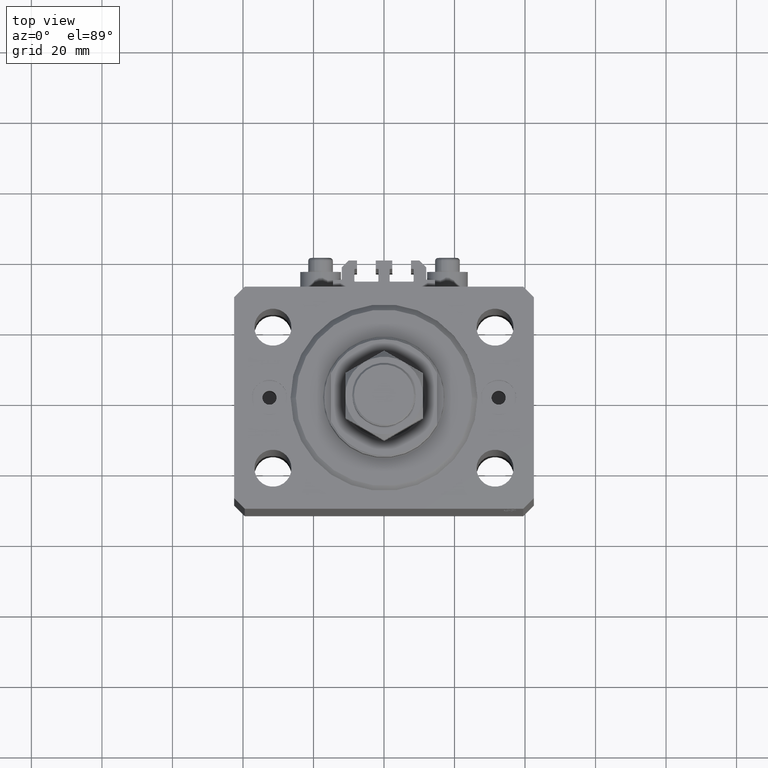
[diagram: clean part render]
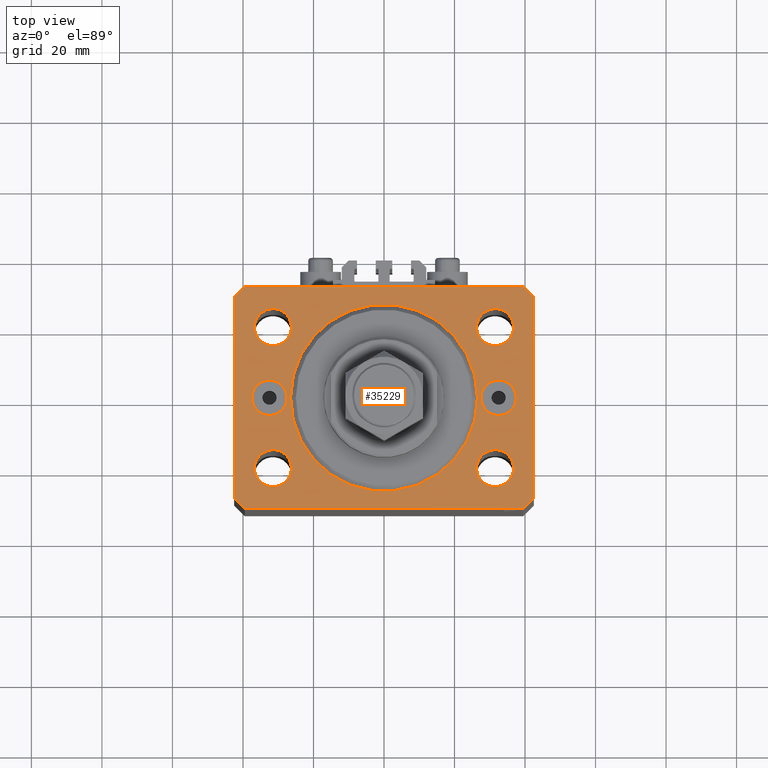
[diagram: same view with one face highlighted and labeled with its STEP entity id]
A machine part, top view. The second image highlights one B-rep face of the part: STEP entity #35229.
In plain terms, the highlighted planar face has unit normal (0, 0, 1).
Its self-contained STEP definition (entity closure, byte-faithful):
#172 = EDGE_CURVE ( 'NONE', #47858, #40413, #10281, .T. ) ;
#200 = LINE ( 'NONE', #38032, #3105 ) ;
#629 = ORIENTED_EDGE ( 'NONE', *, *, #36236, .F. ) ;
#662 = VECTOR ( 'NONE', #4744, 1000.000000000000114 ) ;
#1419 = DIRECTION ( 'NONE',  ( 0.000000000000000000, -0.000000000000000000, -1.000000000000000000 ) ) ;
#1647 = DIRECTION ( 'NONE',  ( 0.000000000000000000, 0.000000000000000000, 1.000000000000000000 ) ) ;
#1717 = CARTESIAN_POINT ( 'NONE',  ( -31.49999999999999289, -20.00000000000000355, 0.000000000000000000 ) ) ;
#1890 = CARTESIAN_POINT ( 'NONE',  ( 39.50000000000000711, -31.50000000000000000, 0.000000000000000000 ) ) ;
#2325 = DIRECTION ( 'NONE',  ( 0.000000000000000000, 0.000000000000000000, 1.000000000000000000 ) ) ;
#2350 = EDGE_CURVE ( 'NONE', #36246, #19593, #17855, .T. ) ;
#2434 = VERTEX_POINT ( 'NONE', #10836 ) ;
#2985 = AXIS2_PLACEMENT_3D ( 'NONE', #23784, #27502, #24020 ) ;
#3038 = CARTESIAN_POINT ( 'NONE',  ( 39.50000000000056843, 31.50000000000000000, 0.000000000000000000 ) ) ;
#3105 = VECTOR ( 'NONE', #34817, 1000.000000000000000 ) ;
#3718 = DIRECTION ( 'NONE',  ( 1.000000000000000000, 0.000000000000000000, -0.000000000000000000 ) ) ;
#4280 = CARTESIAN_POINT ( 'NONE',  ( 39.50000000000056843, 31.50000000000000000, 0.000000000000000000 ) ) ;
#4451 = FACE_BOUND ( 'NONE', #28530, .T. ) ;
#4744 = DIRECTION ( 'NONE',  ( -0.7071067811865356934, 0.7071067811865594521, 0.000000000000000000 ) ) ;
#5017 = EDGE_CURVE ( 'NONE', #41247, #27055, #48264, .T. ) ;
#5198 = CARTESIAN_POINT ( 'NONE',  ( 0.000000000000000000, 0.000000000000000000, 0.000000000000000000 ) ) ;
#5260 = AXIS2_PLACEMENT_3D ( 'NONE', #34385, #22754, #3718 ) ;
#6102 = CIRCLE ( 'NONE', #6870, 26.50000000000000355 ) ;
#6127 = CIRCLE ( 'NONE', #2985, 5.000000000000000888 ) ;
#6146 = DIRECTION ( 'NONE',  ( 1.000000000000000000, 0.000000000000000000, 0.000000000000000000 ) ) ;
#6411 = DIRECTION ( 'NONE',  ( 0.000000000000000000, 0.000000000000000000, 1.000000000000000000 ) ) ;
#6434 = CARTESIAN_POINT ( 'NONE',  ( -27.50000000000000000, 0.000000000000000000, 0.000000000000000000 ) ) ;
#6438 = CIRCLE ( 'NONE', #33269, 5.000000000000000888 ) ;
#6870 = AXIS2_PLACEMENT_3D ( 'NONE', #5198, #13346, #42784 ) ;
#6894 = DIRECTION ( 'NONE',  ( 1.000000000000000000, 0.000000000000000000, 0.000000000000000000 ) ) ;
#6911 = CIRCLE ( 'NONE', #32181, 5.250000000000000888 ) ;
#7923 = FACE_BOUND ( 'NONE', #19660, .T. ) ;
#7931 = ORIENTED_EDGE ( 'NONE', *, *, #46854, .T. ) ;
#7953 = CIRCLE ( 'NONE', #8747, 5.250000000000000888 ) ;
#7988 = ORIENTED_EDGE ( 'NONE', *, *, #44673, .T. ) ;
#7995 = LINE ( 'NONE', #4280, #21666 ) ;
#8012 = VERTEX_POINT ( 'NONE', #47194 ) ;
#8747 = AXIS2_PLACEMENT_3D ( 'NONE', #1717, #47418, #6146 ) ;
#8911 = ORIENTED_EDGE ( 'NONE', *, *, #38169, .F. ) ;
#8921 = ORIENTED_EDGE ( 'NONE', *, *, #16006, .F. ) ;
#9085 = CARTESIAN_POINT ( 'NONE',  ( 36.74999999999999289, -20.00000000000000355, 0.000000000000000000 ) ) ;
#9627 = CARTESIAN_POINT ( 'NONE',  ( -26.50000000000000355, 3.245314017740486554E-15, 0.000000000000000000 ) ) ;
#10065 = CARTESIAN_POINT ( 'NONE',  ( 27.50000000000000355, 6.123233995736762338E-16, 0.000000000000000000 ) ) ;
#10081 = CARTESIAN_POINT ( 'NONE',  ( -36.75000000000000000, 19.99999999999999645, 0.000000000000000000 ) ) ;
#10281 = CIRCLE ( 'NONE', #13430, 26.50000000000000355 ) ;
#10672 = CARTESIAN_POINT ( 'NONE',  ( -42.50000000000000000, 28.50000000000000000, 0.000000000000000000 ) ) ;
#10778 = AXIS2_PLACEMENT_3D ( 'NONE', #40277, #6411, #6894 ) ;
#10836 = CARTESIAN_POINT ( 'NONE',  ( -36.74999999999999289, -20.00000000000000355, 0.000000000000000000 ) ) ;
#10861 = AXIS2_PLACEMENT_3D ( 'NONE', #13263, #1419, #38998 ) ;
#10887 = CARTESIAN_POINT ( 'NONE',  ( 42.50000000000000711, -28.50000000000000355, 0.000000000000000000 ) ) ;
#11374 = FACE_BOUND ( 'NONE', #39469, .T. ) ;
#11889 = EDGE_CURVE ( 'NONE', #40943, #20384, #200, .T. ) ;
#12103 = ORIENTED_EDGE ( 'NONE', *, *, #45156, .T. ) ;
#12115 = FACE_BOUND ( 'NONE', #44449, .T. ) ;
#12320 = DIRECTION ( 'NONE',  ( 1.000000000000000000, 0.000000000000000000, 0.000000000000000000 ) ) ;
#12515 = VERTEX_POINT ( 'NONE', #17518 ) ;
#12585 = DIRECTION ( 'NONE',  ( 1.000000000000000000, 0.000000000000000000, 0.000000000000000000 ) ) ;
#13073 = VERTEX_POINT ( 'NONE', #48786 ) ;
#13263 = CARTESIAN_POINT ( 'NONE',  ( 32.50000000000000000, 0.000000000000000000, 0.000000000000000000 ) ) ;
#13346 = DIRECTION ( 'NONE',  ( 0.000000000000000000, 0.000000000000000000, 1.000000000000000000 ) ) ;
#13430 = AXIS2_PLACEMENT_3D ( 'NONE', #46866, #1647, #17184 ) ;
#13973 = CARTESIAN_POINT ( 'NONE',  ( 26.25000000000000355, 19.99999999999999289, 0.000000000000000000 ) ) ;
#14395 = CARTESIAN_POINT ( 'NONE',  ( 42.50000000000051870, 28.49999999999995381, 0.000000000000000000 ) ) ;
#14817 = CARTESIAN_POINT ( 'NONE',  ( -32.50000000000000000, 0.000000000000000000, 0.000000000000000000 ) ) ;
#14871 = VERTEX_POINT ( 'NONE', #38919 ) ;
#14921 = DIRECTION ( 'NONE',  ( -1.000000000000000000, 0.000000000000000000, 0.000000000000000000 ) ) ;
#15091 = FACE_BOUND ( 'NONE', #24853, .T. ) ;
#15259 = LINE ( 'NONE', #46154, #26702 ) ;
#15312 = CIRCLE ( 'NONE', #16794, 5.249999999999997335 ) ;
#15468 = CARTESIAN_POINT ( 'NONE',  ( 26.50000000000000355, 0.000000000000000000, 0.000000000000000000 ) ) ;
#15537 = DIRECTION ( 'NONE',  ( 0.000000000000000000, 0.000000000000000000, 1.000000000000000000 ) ) ;
#15829 = FACE_OUTER_BOUND ( 'NONE', #31552, .T. ) ;
#16006 = EDGE_CURVE ( 'NONE', #2434, #21685, #7953, .T. ) ;
#16216 = ORIENTED_EDGE ( 'NONE', *, *, #44912, .F. ) ;
#16329 = VECTOR ( 'NONE', #16503, 1000.000000000000000 ) ;
#16370 = CIRCLE ( 'NONE', #36150, 5.249999999999997335 ) ;
#16503 = DIRECTION ( 'NONE',  ( 1.000000000000000000, 0.000000000000000000, 0.000000000000000000 ) ) ;
#16794 = AXIS2_PLACEMENT_3D ( 'NONE', #42979, #43467, #12585 ) ;
#17173 = CIRCLE ( 'NONE', #23498, 5.249999999999997335 ) ;
#17184 = DIRECTION ( 'NONE',  ( 1.000000000000000000, 0.000000000000000000, 0.000000000000000000 ) ) ;
#17518 = CARTESIAN_POINT ( 'NONE',  ( 39.50000000000000711, -31.50000000000000000, 0.000000000000000000 ) ) ;
#17578 = ORIENTED_EDGE ( 'NONE', *, *, #29222, .T. ) ;
#17855 = CIRCLE ( 'NONE', #10778, 5.250000000000000888 ) ;
#17889 = ORIENTED_EDGE ( 'NONE', *, *, #2350, .F. ) ;
#18461 = EDGE_CURVE ( 'NONE', #33839, #8012, #6438, .T. ) ;
#18583 = DIRECTION ( 'NONE',  ( 1.000000000000000000, 0.000000000000000000, 0.000000000000000000 ) ) ;
#19287 = FACE_BOUND ( 'NONE', #20389, .T. ) ;
#19327 = ORIENTED_EDGE ( 'NONE', *, *, #39379, .T. ) ;
#19593 = VERTEX_POINT ( 'NONE', #10081 ) ;
#19660 = EDGE_LOOP ( 'NONE', ( #27204, #48890 ) ) ;
#19727 = LINE ( 'NONE', #30864, #16329 ) ;
#20384 = VERTEX_POINT ( 'NONE', #47171 ) ;
#20389 = EDGE_LOOP ( 'NONE', ( #629, #20617 ) ) ;
#20617 = ORIENTED_EDGE ( 'NONE', *, *, #172, .F. ) ;
#21666 = VECTOR ( 'NONE', #14921, 1000.000000000000000 ) ;
#21679 = CARTESIAN_POINT ( 'NONE',  ( 32.50000000000000000, 0.000000000000000000, 0.000000000000000000 ) ) ;
#21685 = VERTEX_POINT ( 'NONE', #38410 ) ;
#21769 = DIRECTION ( 'NONE',  ( 8.886653596232072440E-15, 1.000000000000000000, 0.000000000000000000 ) ) ;
#22726 = DIRECTION ( 'NONE',  ( 0.000000000000000000, 0.000000000000000000, 1.000000000000000000 ) ) ;
#22754 = DIRECTION ( 'NONE',  ( 0.000000000000000000, 0.000000000000000000, 1.000000000000000000 ) ) ;
#22775 = LINE ( 'NONE', #10672, #43211 ) ;
#22837 = EDGE_CURVE ( 'NONE', #47612, #28661, #31854, .T. ) ;
#23094 = CARTESIAN_POINT ( 'NONE',  ( -42.50000000000000000, -28.50000000000000000, 0.000000000000000000 ) ) ;
#23146 = EDGE_LOOP ( 'NONE', ( #8911, #37199 ) ) ;
#23488 = AXIS2_PLACEMENT_3D ( 'NONE', #21679, #48855, #33313 ) ;
#23498 = AXIS2_PLACEMENT_3D ( 'NONE', #24633, #46647, #47115 ) ;
#23784 = CARTESIAN_POINT ( 'NONE',  ( -32.50000000000000000, 0.000000000000000000, 0.000000000000000000 ) ) ;
#24020 = DIRECTION ( 'NONE',  ( 1.000000000000000000, 0.000000000000000000, 0.000000000000000000 ) ) ;
#24633 = CARTESIAN_POINT ( 'NONE',  ( 31.50000000000000000, 19.99999999999999289, 0.000000000000000000 ) ) ;
#24847 = CIRCLE ( 'NONE', #48554, 5.250000000000000888 ) ;
#24853 = EDGE_LOOP ( 'NONE', ( #16216, #8921 ) ) ;
#24866 = DIRECTION ( 'NONE',  ( 0.7071067811865483499, 0.7071067811865466846, 0.000000000000000000 ) ) ;
#25165 = EDGE_CURVE ( 'NONE', #46107, #44794, #15312, .T. ) ;
#26221 = FACE_BOUND ( 'NONE', #23146, .T. ) ;
#26356 = EDGE_CURVE ( 'NONE', #12515, #37240, #28587, .T. ) ;
#26609 = ORIENTED_EDGE ( 'NONE', *, *, #22837, .F. ) ;
#26702 = VECTOR ( 'NONE', #45412, 1000.000000000000000 ) ;
#26766 = DIRECTION ( 'NONE',  ( 0.000000000000000000, 0.000000000000000000, 1.000000000000000000 ) ) ;
#27055 = VERTEX_POINT ( 'NONE', #3038 ) ;
#27204 = ORIENTED_EDGE ( 'NONE', *, *, #18461, .F. ) ;
#27495 = CARTESIAN_POINT ( 'NONE',  ( 42.50000000000051870, 28.49999999999995381, 0.000000000000000000 ) ) ;
#27502 = DIRECTION ( 'NONE',  ( 0.000000000000000000, 0.000000000000000000, 1.000000000000000000 ) ) ;
#28530 = EDGE_LOOP ( 'NONE', ( #12103, #41549 ) ) ;
#28587 = LINE ( 'NONE', #1890, #37351 ) ;
#28661 = VERTEX_POINT ( 'NONE', #9085 ) ;
#29222 = EDGE_CURVE ( 'NONE', #27055, #13073, #7995, .T. ) ;
#29508 = ORIENTED_EDGE ( 'NONE', *, *, #37649, .F. ) ;
#30384 = EDGE_CURVE ( 'NONE', #37240, #41247, #48224, .T. ) ;
#30864 = CARTESIAN_POINT ( 'NONE',  ( -39.50000000000000711, -31.50000000000000000, 0.000000000000000000 ) ) ;
#31083 = AXIS2_PLACEMENT_3D ( 'NONE', #48728, #45511, #18583 ) ;
#31134 = CARTESIAN_POINT ( 'NONE',  ( -31.49999999999999289, -20.00000000000000355, 0.000000000000000000 ) ) ;
#31194 = EDGE_CURVE ( 'NONE', #19593, #36246, #24847, .T. ) ;
#31552 = EDGE_LOOP ( 'NONE', ( #17578, #7931, #7988, #41294, #19327, #38367, #34551, #46199 ) ) ;
#31854 = CIRCLE ( 'NONE', #31083, 5.249999999999997335 ) ;
#32181 = AXIS2_PLACEMENT_3D ( 'NONE', #31134, #15537, #12320 ) ;
#32651 = CARTESIAN_POINT ( 'NONE',  ( -42.50000000000000000, 28.50000000000000000, 0.000000000000000000 ) ) ;
#32951 = CIRCLE ( 'NONE', #23488, 4.999999999999997335 ) ;
#33269 = AXIS2_PLACEMENT_3D ( 'NONE', #14817, #22726, #37580 ) ;
#33313 = DIRECTION ( 'NONE',  ( 1.000000000000000000, 0.000000000000000000, 0.000000000000000000 ) ) ;
#33703 = CARTESIAN_POINT ( 'NONE',  ( 31.49999999999999289, -20.00000000000000355, 0.000000000000000000 ) ) ;
#33839 = VERTEX_POINT ( 'NONE', #6434 ) ;
#34385 = CARTESIAN_POINT ( 'NONE',  ( 0.000000000000000000, 0.000000000000000000, 0.000000000000000000 ) ) ;
#34551 = ORIENTED_EDGE ( 'NONE', *, *, #30384, .T. ) ;
#34817 = DIRECTION ( 'NONE',  ( 0.7071067811865471286, -0.7071067811865479058, 0.000000000000000000 ) ) ;
#35229 = ADVANCED_FACE ( 'NONE', ( #15829, #12115, #26221, #11374, #15091, #19287, #7923, #4451 ), #45011, .T. ) ;
#36150 = AXIS2_PLACEMENT_3D ( 'NONE', #33703, #26766, #41352 ) ;
#36236 = EDGE_CURVE ( 'NONE', #40413, #47858, #6102, .T. ) ;
#36246 = VERTEX_POINT ( 'NONE', #47444 ) ;
#37199 = ORIENTED_EDGE ( 'NONE', *, *, #25165, .F. ) ;
#37240 = VERTEX_POINT ( 'NONE', #41020 ) ;
#37351 = VECTOR ( 'NONE', #24866, 1000.000000000000000 ) ;
#37365 = CARTESIAN_POINT ( 'NONE',  ( 26.24999999999999645, -20.00000000000000355, 0.000000000000000000 ) ) ;
#37497 = VECTOR ( 'NONE', #21769, 1000.000000000000000 ) ;
#37580 = DIRECTION ( 'NONE',  ( 1.000000000000000000, 0.000000000000000000, 0.000000000000000000 ) ) ;
#37649 = EDGE_CURVE ( 'NONE', #28661, #47612, #16370, .T. ) ;
#38032 = CARTESIAN_POINT ( 'NONE',  ( -42.50000000000000000, -28.50000000000000000, 0.000000000000000000 ) ) ;
#38129 = EDGE_CURVE ( 'NONE', #45177, #14871, #42446, .T. ) ;
#38169 = EDGE_CURVE ( 'NONE', #44794, #46107, #17173, .T. ) ;
#38367 = ORIENTED_EDGE ( 'NONE', *, *, #26356, .T. ) ;
#38410 = CARTESIAN_POINT ( 'NONE',  ( -26.24999999999999289, -20.00000000000000355, 0.000000000000000000 ) ) ;
#38919 = CARTESIAN_POINT ( 'NONE',  ( 37.50000000000000000, 0.000000000000000000, 0.000000000000000000 ) ) ;
#38998 = DIRECTION ( 'NONE',  ( 1.000000000000000000, 0.000000000000000000, 0.000000000000000000 ) ) ;
#39379 = EDGE_CURVE ( 'NONE', #20384, #12515, #19727, .T. ) ;
#39469 = EDGE_LOOP ( 'NONE', ( #29508, #26609 ) ) ;
#40277 = CARTESIAN_POINT ( 'NONE',  ( -31.50000000000000000, 19.99999999999999645, 0.000000000000000000 ) ) ;
#40413 = VERTEX_POINT ( 'NONE', #15468 ) ;
#40634 = CARTESIAN_POINT ( 'NONE',  ( -31.50000000000000000, 19.99999999999999645, 0.000000000000000000 ) ) ;
#40943 = VERTEX_POINT ( 'NONE', #23094 ) ;
#41020 = CARTESIAN_POINT ( 'NONE',  ( 42.50000000000000711, -28.50000000000000355, 0.000000000000000000 ) ) ;
#41247 = VERTEX_POINT ( 'NONE', #27495 ) ;
#41294 = ORIENTED_EDGE ( 'NONE', *, *, #11889, .T. ) ;
#41352 = DIRECTION ( 'NONE',  ( 1.000000000000000000, 0.000000000000000000, 0.000000000000000000 ) ) ;
#41549 = ORIENTED_EDGE ( 'NONE', *, *, #38129, .T. ) ;
#41979 = EDGE_CURVE ( 'NONE', #8012, #33839, #6127, .T. ) ;
#42446 = CIRCLE ( 'NONE', #10861, 4.999999999999997335 ) ;
#42784 = DIRECTION ( 'NONE',  ( 1.000000000000000000, 0.000000000000000000, 0.000000000000000000 ) ) ;
#42855 = ORIENTED_EDGE ( 'NONE', *, *, #31194, .F. ) ;
#42979 = CARTESIAN_POINT ( 'NONE',  ( 31.50000000000000000, 19.99999999999999289, 0.000000000000000000 ) ) ;
#43029 = CARTESIAN_POINT ( 'NONE',  ( 36.75000000000000000, 19.99999999999999289, 0.000000000000000000 ) ) ;
#43211 = VECTOR ( 'NONE', #43635, 1000.000000000000000 ) ;
#43467 = DIRECTION ( 'NONE',  ( 0.000000000000000000, 0.000000000000000000, 1.000000000000000000 ) ) ;
#43635 = DIRECTION ( 'NONE',  ( 0.000000000000000000, -1.000000000000000000, 0.000000000000000000 ) ) ;
#44091 = DIRECTION ( 'NONE',  ( 1.000000000000000000, 0.000000000000000000, 0.000000000000000000 ) ) ;
#44449 = EDGE_LOOP ( 'NONE', ( #17889, #42855 ) ) ;
#44673 = EDGE_CURVE ( 'NONE', #48306, #40943, #22775, .T. ) ;
#44794 = VERTEX_POINT ( 'NONE', #43029 ) ;
#44912 = EDGE_CURVE ( 'NONE', #21685, #2434, #6911, .T. ) ;
#45011 = PLANE ( 'NONE',  #5260 ) ;
#45156 = EDGE_CURVE ( 'NONE', #14871, #45177, #32951, .T. ) ;
#45177 = VERTEX_POINT ( 'NONE', #10065 ) ;
#45412 = DIRECTION ( 'NONE',  ( -0.7071067811865471286, -0.7071067811865479058, 0.000000000000000000 ) ) ;
#45511 = DIRECTION ( 'NONE',  ( 0.000000000000000000, 0.000000000000000000, 1.000000000000000000 ) ) ;
#46107 = VERTEX_POINT ( 'NONE', #13973 ) ;
#46154 = CARTESIAN_POINT ( 'NONE',  ( -39.50000000000000711, 31.50000000000000000, 0.000000000000000000 ) ) ;
#46199 = ORIENTED_EDGE ( 'NONE', *, *, #5017, .T. ) ;
#46647 = DIRECTION ( 'NONE',  ( 0.000000000000000000, 0.000000000000000000, 1.000000000000000000 ) ) ;
#46854 = EDGE_CURVE ( 'NONE', #13073, #48306, #15259, .T. ) ;
#46866 = CARTESIAN_POINT ( 'NONE',  ( 0.000000000000000000, 0.000000000000000000, 0.000000000000000000 ) ) ;
#47115 = DIRECTION ( 'NONE',  ( 1.000000000000000000, 0.000000000000000000, 0.000000000000000000 ) ) ;
#47171 = CARTESIAN_POINT ( 'NONE',  ( -39.50000000000000711, -31.50000000000000000, 0.000000000000000000 ) ) ;
#47194 = CARTESIAN_POINT ( 'NONE',  ( -37.50000000000000000, 6.123233995736768255E-16, 0.000000000000000000 ) ) ;
#47418 = DIRECTION ( 'NONE',  ( 0.000000000000000000, 0.000000000000000000, 1.000000000000000000 ) ) ;
#47444 = CARTESIAN_POINT ( 'NONE',  ( -26.25000000000000000, 19.99999999999999645, 0.000000000000000000 ) ) ;
#47612 = VERTEX_POINT ( 'NONE', #37365 ) ;
#47858 = VERTEX_POINT ( 'NONE', #9627 ) ;
#48224 = LINE ( 'NONE', #10887, #37497 ) ;
#48264 = LINE ( 'NONE', #14395, #662 ) ;
#48306 = VERTEX_POINT ( 'NONE', #32651 ) ;
#48554 = AXIS2_PLACEMENT_3D ( 'NONE', #40634, #2325, #44091 ) ;
#48728 = CARTESIAN_POINT ( 'NONE',  ( 31.49999999999999289, -20.00000000000000355, 0.000000000000000000 ) ) ;
#48786 = CARTESIAN_POINT ( 'NONE',  ( -39.50000000000000711, 31.50000000000000000, 0.000000000000000000 ) ) ;
#48855 = DIRECTION ( 'NONE',  ( 0.000000000000000000, -0.000000000000000000, -1.000000000000000000 ) ) ;
#48890 = ORIENTED_EDGE ( 'NONE', *, *, #41979, .F. ) ;